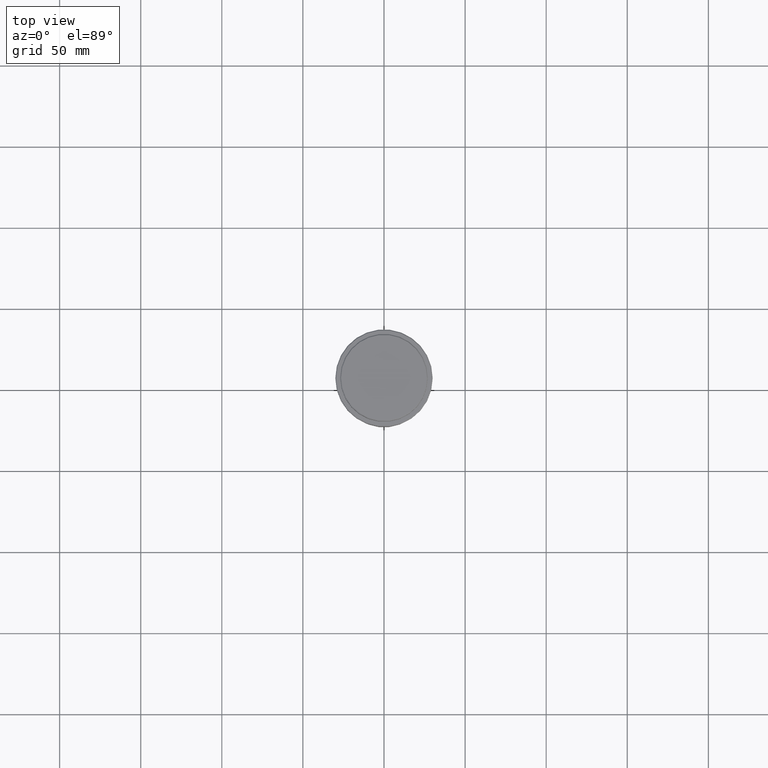
[diagram: clean part render]
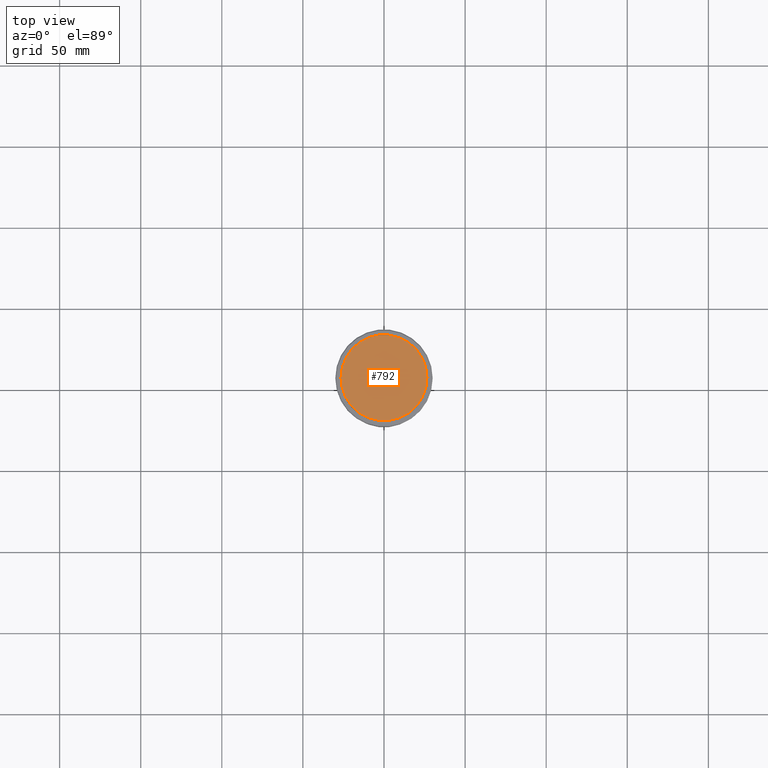
[diagram: same view with one face highlighted and labeled with its STEP entity id]
A machine part, top view. The second image highlights one B-rep face of the part: STEP entity #792.
In plain terms, the highlighted planar face has unit normal (0, -0, 1).
Its self-contained STEP definition (entity closure, byte-faithful):
#57 = PLANE ( 'NONE',  #138 ) ;
#138 = AXIS2_PLACEMENT_3D ( 'NONE', #261, #804, #938 ) ;
#141 = DIRECTION ( 'NONE',  ( 1.000000000000000000, 0.000000000000000000, 0.000000000000000000 ) ) ;
#179 = CIRCLE ( 'NONE', #1288, 26.50000000000002487 ) ;
#187 = CARTESIAN_POINT ( 'NONE',  ( 0.000000000000000000, 0.000000000000000000, 0.000000000000000000 ) ) ;
#238 = CARTESIAN_POINT ( 'NONE',  ( 26.50000000000002487, 3.275930187719171130E-15, 0.000000000000000000 ) ) ;
#261 = CARTESIAN_POINT ( 'NONE',  ( 0.000000000000000000, 0.000000000000000000, 0.000000000000000000 ) ) ;
#309 = DIRECTION ( 'NONE',  ( 1.000000000000000000, 0.000000000000000000, 0.000000000000000000 ) ) ;
#326 = DIRECTION ( 'NONE',  ( -0.000000000000000000, -0.000000000000000000, 1.000000000000000000 ) ) ;
#563 = EDGE_CURVE ( 'NONE', #758, #1142, #179, .T. ) ;
#651 = ORIENTED_EDGE ( 'NONE', *, *, #1359, .T. ) ;
#672 = CIRCLE ( 'NONE', #896, 26.50000000000002487 ) ;
#726 = FACE_OUTER_BOUND ( 'NONE', #1313, .T. ) ;
#758 = VERTEX_POINT ( 'NONE', #1151 ) ;
#792 = ADVANCED_FACE ( 'NONE', ( #726 ), #57, .T. ) ;
#804 = DIRECTION ( 'NONE',  ( 0.000000000000000000, -0.000000000000000000, 1.000000000000000000 ) ) ;
#874 = DIRECTION ( 'NONE',  ( -0.000000000000000000, -0.000000000000000000, 1.000000000000000000 ) ) ;
#896 = AXIS2_PLACEMENT_3D ( 'NONE', #187, #326, #309 ) ;
#938 = DIRECTION ( 'NONE',  ( 1.000000000000000000, 0.000000000000000000, 0.000000000000000000 ) ) ;
#1142 = VERTEX_POINT ( 'NONE', #238 ) ;
#1151 = CARTESIAN_POINT ( 'NONE',  ( -26.50000000000002487, 0.000000000000000000, 0.000000000000000000 ) ) ;
#1227 = CARTESIAN_POINT ( 'NONE',  ( 0.000000000000000000, 0.000000000000000000, 0.000000000000000000 ) ) ;
#1288 = AXIS2_PLACEMENT_3D ( 'NONE', #1227, #874, #141 ) ;
#1313 = EDGE_LOOP ( 'NONE', ( #1384, #651 ) ) ;
#1359 = EDGE_CURVE ( 'NONE', #1142, #758, #672, .T. ) ;
#1384 = ORIENTED_EDGE ( 'NONE', *, *, #563, .T. ) ;